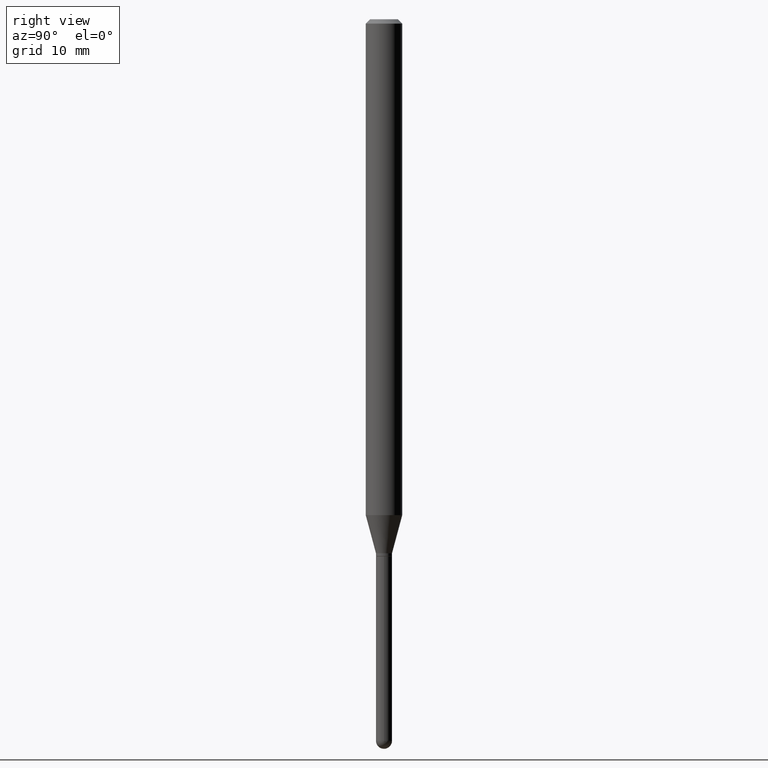
[diagram: clean part render]
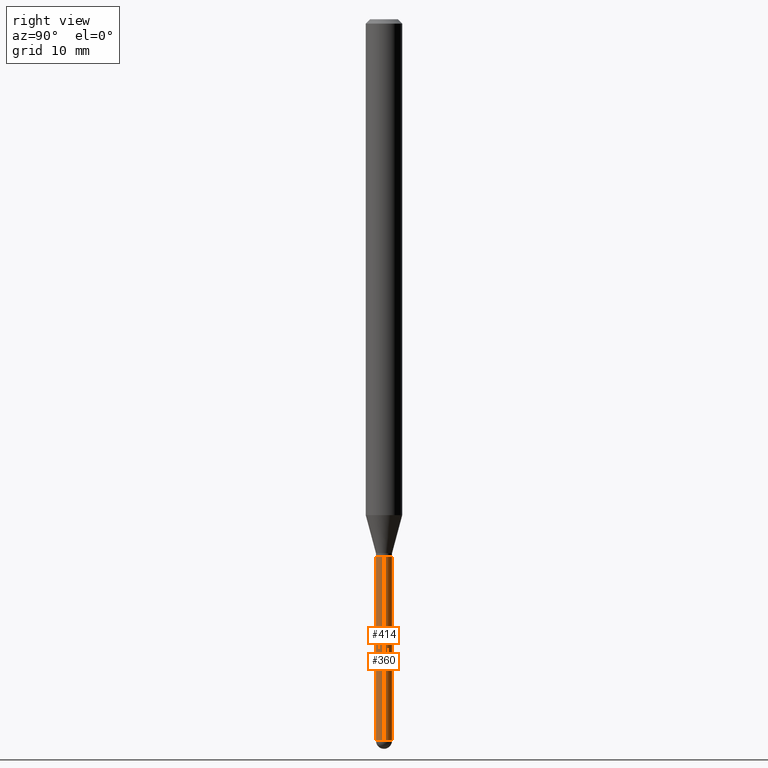
[diagram: same view with one multi-face feature highlighted, each face labeled with its STEP entity id]
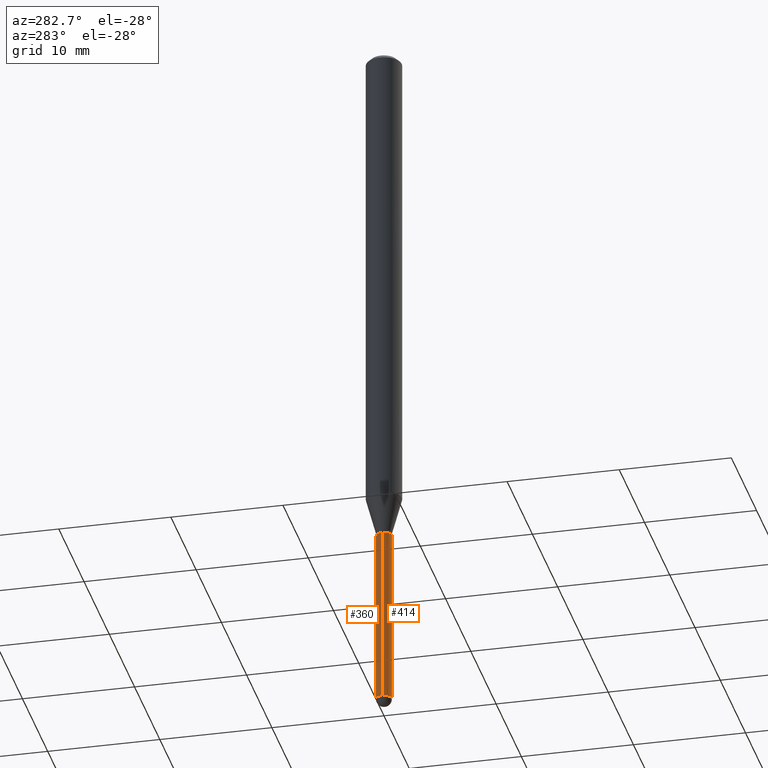
[diagram: same view with one multi-face feature highlighted, each face labeled with its STEP entity id]
A machine part, right view. The highlighted faces form ONE feature: a constant-radius fillet chain: 2 tangent blend faces with common blend radius 0.6985 mm. The faces share edges in the B-rep.
A second angle (auxiliary view) of the same feature is appended — it is thin or edge-on in the first view.
Their STEP definitions:
[1] entity #360 (Cylinder):
#5 = CARTESIAN_POINT ( 'NONE',  ( 1.920314736364331113E-16, 0.02749999999999141673, -2.472499999999999254 ) ) ;
#8 = DIRECTION ( 'NONE',  ( -2.445468806185136597E-29, 3.491481338843145583E-15, 1.000000000000000000 ) ) ;
#17 = CIRCLE ( 'NONE', #496, 0.02750000000000000014 ) ;
#33 = VERTEX_POINT ( 'NONE', #426 ) ;
#35 = LINE ( 'NONE', #295, #335 ) ;
#43 = EDGE_CURVE ( 'NONE', #337, #292, #288, .T. ) ;
#62 = EDGE_LOOP ( 'NONE', ( #427, #352, #493, #236, #429 ) ) ;
#69 = DIRECTION ( 'NONE',  ( 1.000000000000000000, -6.982962677686279332E-15, 0.000000000000000000 ) ) ;
#84 = CYLINDRICAL_SURFACE ( 'NONE', #323, 0.02750000000000000014 ) ;
#86 = CARTESIAN_POINT ( 'NONE',  ( -0.02750000000000000014, -7.333107384546504605E-15, -2.472499999999999254 ) ) ;
#105 = EDGE_CURVE ( 'NONE', #167, #33, #282, .T. ) ;
#117 = DIRECTION ( 'NONE',  ( 1.000000000000000000, -6.982962677686279332E-15, 0.000000000000000000 ) ) ;
#122 = DIRECTION ( 'NONE',  ( -2.445468806185136877E-29, 3.491481338843145188E-15, 1.000000000000000000 ) ) ;
#131 = VECTOR ( 'NONE', #122, 39.37007874015748143 ) ;
#143 = EDGE_CURVE ( 'NONE', #337, #167, #35, .T. ) ;
#145 = CARTESIAN_POINT ( 'NONE',  ( 0.02750000000000000014, -6.616357137107761216E-15, -1.840000000000000080 ) ) ;
#153 = CARTESIAN_POINT ( 'NONE',  ( 6.046421623292748621E-29, -8.632687610289675147E-15, -2.472499999999999254 ) ) ;
#159 = CARTESIAN_POINT ( 'NONE',  ( 0.02750000000000000014, -7.720538110516904428E-15, -2.472499999999999254 ) ) ;
#161 = FACE_OUTER_BOUND ( 'NONE', #62, .T. ) ;
#167 = VERTEX_POINT ( 'NONE', #145 ) ;
#175 = CARTESIAN_POINT ( 'NONE',  ( 4.499662603380651271E-29, -6.424325663471388724E-15, -1.840000000000000080 ) ) ;
#195 = DIRECTION ( 'NONE',  ( 1.000000000000000000, -6.982962677686266711E-15, 4.876176775795935793E-29 ) ) ;
#218 = VERTEX_POINT ( 'NONE', #86 ) ;
#220 = AXIS2_PLACEMENT_3D ( 'NONE', #153, #419, #461 ) ;
#236 = ORIENTED_EDGE ( 'NONE', *, *, #143, .F. ) ;
#280 = DIRECTION ( 'NONE',  ( -2.445468806185136597E-29, 3.491481338843145583E-15, 1.000000000000000000 ) ) ;
#281 = LINE ( 'NONE', #359, #131 ) ;
#282 = CIRCLE ( 'NONE', #315, 0.02750000000000000014 ) ;
#288 = CIRCLE ( 'NONE', #220, 0.02750000000000000014 ) ;
#292 = VERTEX_POINT ( 'NONE', #5 ) ;
#295 = CARTESIAN_POINT ( 'NONE',  ( 0.02750000000000000014, -1.920314736363723444E-16, 1.340948613343882413E-30 ) ) ;
#308 = EDGE_CURVE ( 'NONE', #292, #218, #17, .T. ) ;
#315 = AXIS2_PLACEMENT_3D ( 'NONE', #175, #372, #69 ) ;
#323 = AXIS2_PLACEMENT_3D ( 'NONE', #364, #8, #195 ) ;
#335 = VECTOR ( 'NONE', #422, 39.37007874015748143 ) ;
#337 = VERTEX_POINT ( 'NONE', #159 ) ;
#352 = ORIENTED_EDGE ( 'NONE', *, *, #421, .T. ) ;
#359 = CARTESIAN_POINT ( 'NONE',  ( -0.02750000000000000014, 1.953992523340275521E-16, -1.352707149820099181E-30 ) ) ;
#360 = ADVANCED_FACE ( 'NONE', ( #161 ), #84, .T. ) ;
#364 = CARTESIAN_POINT ( 'NONE',  ( 0.000000000000000000, 0.000000000000000000, 0.000000000000000000 ) ) ;
#372 = DIRECTION ( 'NONE',  ( -2.445468806185136597E-29, 3.491481338843145583E-15, 1.000000000000000000 ) ) ;
#398 = CARTESIAN_POINT ( 'NONE',  ( 6.046421623292748621E-29, -8.632687610289675147E-15, -2.472499999999999254 ) ) ;
#419 = DIRECTION ( 'NONE',  ( -2.445468806185136597E-29, 3.491481338843145583E-15, 1.000000000000000000 ) ) ;
#421 = EDGE_CURVE ( 'NONE', #218, #33, #281, .T. ) ;
#422 = DIRECTION ( 'NONE',  ( -2.445468806185136877E-29, 3.491481338843145188E-15, 1.000000000000000000 ) ) ;
#426 = CARTESIAN_POINT ( 'NONE',  ( -0.02750000000000000014, -7.333107384546504605E-15, -1.840000000000000080 ) ) ;
#427 = ORIENTED_EDGE ( 'NONE', *, *, #308, .T. ) ;
#429 = ORIENTED_EDGE ( 'NONE', *, *, #43, .T. ) ;
#461 = DIRECTION ( 'NONE',  ( 1.000000000000000000, -6.982962677686279332E-15, 0.000000000000000000 ) ) ;
#493 = ORIENTED_EDGE ( 'NONE', *, *, #105, .F. ) ;
#496 = AXIS2_PLACEMENT_3D ( 'NONE', #398, #280, #117 ) ;
[2] entity #414 (Cylinder):
#3 = DIRECTION ( 'NONE',  ( 1.000000000000000000, -6.982962677686279332E-15, 0.000000000000000000 ) ) ;
#6 = DIRECTION ( 'NONE',  ( -2.445468806185136597E-29, 3.491481338843145583E-15, 1.000000000000000000 ) ) ;
#26 = EDGE_CURVE ( 'NONE', #33, #167, #46, .T. ) ;
#30 = CYLINDRICAL_SURFACE ( 'NONE', #77, 0.02750000000000000014 ) ;
#32 = ORIENTED_EDGE ( 'NONE', *, *, #267, .T. ) ;
#33 = VERTEX_POINT ( 'NONE', #426 ) ;
#35 = LINE ( 'NONE', #295, #335 ) ;
#39 = CIRCLE ( 'NONE', #354, 0.02750000000000000014 ) ;
#46 = CIRCLE ( 'NONE', #150, 0.02750000000000000014 ) ;
#49 = DIRECTION ( 'NONE',  ( -2.445468806185136597E-29, 3.491481338843145583E-15, 1.000000000000000000 ) ) ;
#52 = CARTESIAN_POINT ( 'NONE',  ( 6.046421623292748621E-29, -8.632687610289675147E-15, -2.472499999999999254 ) ) ;
#58 = DIRECTION ( 'NONE',  ( 1.000000000000000000, -6.982962677686279332E-15, 0.000000000000000000 ) ) ;
#60 = ORIENTED_EDGE ( 'NONE', *, *, #26, .F. ) ;
#77 = AXIS2_PLACEMENT_3D ( 'NONE', #401, #6, #155 ) ;
#86 = CARTESIAN_POINT ( 'NONE',  ( -0.02750000000000000014, -7.333107384546504605E-15, -2.472499999999999254 ) ) ;
#93 = EDGE_LOOP ( 'NONE', ( #457, #32, #404, #482, #60 ) ) ;
#95 = EDGE_CURVE ( 'NONE', #210, #337, #395, .T. ) ;
#101 = DIRECTION ( 'NONE',  ( -2.445468806185136597E-29, 3.491481338843145583E-15, 1.000000000000000000 ) ) ;
#122 = DIRECTION ( 'NONE',  ( -2.445468806185136877E-29, 3.491481338843145188E-15, 1.000000000000000000 ) ) ;
#131 = VECTOR ( 'NONE', #122, 39.37007874015748143 ) ;
#139 = FACE_OUTER_BOUND ( 'NONE', #93, .T. ) ;
#143 = EDGE_CURVE ( 'NONE', #337, #167, #35, .T. ) ;
#145 = CARTESIAN_POINT ( 'NONE',  ( 0.02750000000000000014, -6.616357137107761216E-15, -1.840000000000000080 ) ) ;
#150 = AXIS2_PLACEMENT_3D ( 'NONE', #479, #49, #3 ) ;
#155 = DIRECTION ( 'NONE',  ( 1.000000000000000000, -6.982962677686266711E-15, 4.876176775795935793E-29 ) ) ;
#157 = CARTESIAN_POINT ( 'NONE',  ( 6.046421623292748621E-29, -8.632687610289675147E-15, -2.472499999999999254 ) ) ;
#159 = CARTESIAN_POINT ( 'NONE',  ( 0.02750000000000000014, -7.720538110516904428E-15, -2.472499999999999254 ) ) ;
#167 = VERTEX_POINT ( 'NONE', #145 ) ;
#203 = DIRECTION ( 'NONE',  ( -2.445468806185136597E-29, 3.491481338843145583E-15, 1.000000000000000000 ) ) ;
#210 = VERTEX_POINT ( 'NONE', #358 ) ;
#218 = VERTEX_POINT ( 'NONE', #86 ) ;
#267 = EDGE_CURVE ( 'NONE', #218, #210, #39, .T. ) ;
#281 = LINE ( 'NONE', #359, #131 ) ;
#295 = CARTESIAN_POINT ( 'NONE',  ( 0.02750000000000000014, -1.920314736363723444E-16, 1.340948613343882413E-30 ) ) ;
#335 = VECTOR ( 'NONE', #422, 39.37007874015748143 ) ;
#337 = VERTEX_POINT ( 'NONE', #159 ) ;
#354 = AXIS2_PLACEMENT_3D ( 'NONE', #52, #203, #58 ) ;
#358 = CARTESIAN_POINT ( 'NONE',  ( -1.953992523339674261E-16, -0.02750000000000868070, -2.472499999999999254 ) ) ;
#359 = CARTESIAN_POINT ( 'NONE',  ( -0.02750000000000000014, 1.953992523340275521E-16, -1.352707149820099181E-30 ) ) ;
#395 = CIRCLE ( 'NONE', #402, 0.02750000000000000014 ) ;
#401 = CARTESIAN_POINT ( 'NONE',  ( 0.000000000000000000, 0.000000000000000000, 0.000000000000000000 ) ) ;
#402 = AXIS2_PLACEMENT_3D ( 'NONE', #157, #101, #413 ) ;
#404 = ORIENTED_EDGE ( 'NONE', *, *, #95, .T. ) ;
#413 = DIRECTION ( 'NONE',  ( 1.000000000000000000, -6.982962677686279332E-15, 0.000000000000000000 ) ) ;
#414 = ADVANCED_FACE ( 'NONE', ( #139 ), #30, .T. ) ;
#421 = EDGE_CURVE ( 'NONE', #218, #33, #281, .T. ) ;
#422 = DIRECTION ( 'NONE',  ( -2.445468806185136877E-29, 3.491481338843145188E-15, 1.000000000000000000 ) ) ;
#426 = CARTESIAN_POINT ( 'NONE',  ( -0.02750000000000000014, -7.333107384546504605E-15, -1.840000000000000080 ) ) ;
#457 = ORIENTED_EDGE ( 'NONE', *, *, #421, .F. ) ;
#479 = CARTESIAN_POINT ( 'NONE',  ( 4.499662603380651271E-29, -6.424325663471388724E-15, -1.840000000000000080 ) ) ;
#482 = ORIENTED_EDGE ( 'NONE', *, *, #143, .T. ) ;